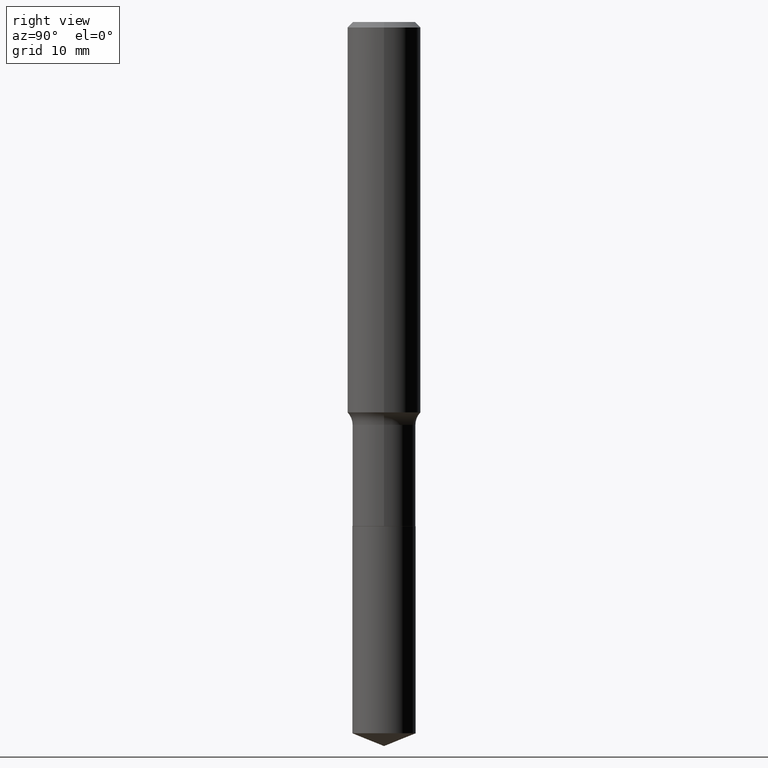
[diagram: clean part render]
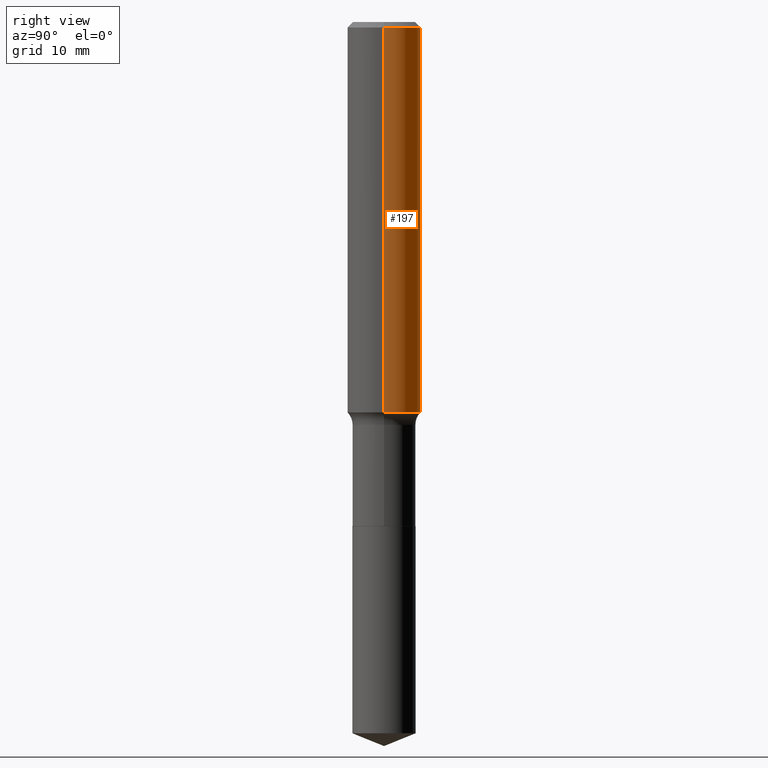
[diagram: same view with one face highlighted and labeled with its STEP entity id]
A machine part, right view. The second image highlights one B-rep face of the part: STEP entity #197.
In plain terms, the highlighted cylindrical surface (partial cylindrical patch) has radius 4.0005 mm, axis along (-0, 0, 1).
Its self-contained STEP definition (entity closure, byte-faithful):
#47 = CIRCLE ( 'NONE', #391, 0.1575000000000001954 ) ;
#55 = EDGE_CURVE ( 'NONE', #486, #356, #249, .T. ) ;
#62 = CARTESIAN_POINT ( 'NONE',  ( -0.1575000000000000844, 1.119104808822158392E-15, -7.747322767151481189E-30 ) ) ;
#95 = ORIENTED_EDGE ( 'NONE', *, *, #55, .T. ) ;
#103 = DIRECTION ( 'NONE',  ( -2.445468806185136597E-29, 3.491481338843145583E-15, 1.000000000000000000 ) ) ;
#104 = VECTOR ( 'NONE', #214, 39.37007874015748143 ) ;
#120 = EDGE_CURVE ( 'NONE', #472, #356, #451, .T. ) ;
#124 = AXIS2_PLACEMENT_3D ( 'NONE', #215, #103, #372 ) ;
#152 = CARTESIAN_POINT ( 'NONE',  ( 0.1575000000000000844, -1.099816621735587677E-15, 7.679978421878603638E-30 ) ) ;
#154 = CARTESIAN_POINT ( 'NONE',  ( 4.100728003481664027E-29, -5.854752783439843973E-15, -1.676867843543948355 ) ) ;
#158 = VECTOR ( 'NONE', #457, 39.37007874015748143 ) ;
#160 = CARTESIAN_POINT ( 'NONE',  ( 5.777420054612421980E-31, -8.248624663016985234E-17, -0.02362500000000015282 ) ) ;
#196 = DIRECTION ( 'NONE',  ( 1.000000000000000000, -6.982962677686265922E-15, 0.000000000000000000 ) ) ;
#197 = ADVANCED_FACE ( 'NONE', ( #218 ), #258, .T. ) ;
#206 = CARTESIAN_POINT ( 'NONE',  ( -0.1575000000000001676, -4.735647974617684792E-15, -1.676867843543948355 ) ) ;
#210 = DIRECTION ( 'NONE',  ( 1.000000000000000000, -6.982962677686265922E-15, 0.000000000000000000 ) ) ;
#214 = DIRECTION ( 'NONE',  ( -2.445468806185136877E-29, 3.491481338843145188E-15, 1.000000000000000000 ) ) ;
#215 = CARTESIAN_POINT ( 'NONE',  ( 0.000000000000000000, 0.000000000000000000, 0.000000000000000000 ) ) ;
#218 = FACE_OUTER_BOUND ( 'NONE', #402, .T. ) ;
#222 = VERTEX_POINT ( 'NONE', #326 ) ;
#242 = ORIENTED_EDGE ( 'NONE', *, *, #313, .F. ) ;
#243 = ORIENTED_EDGE ( 'NONE', *, *, #120, .F. ) ;
#249 = LINE ( 'NONE', #62, #104 ) ;
#258 = CYLINDRICAL_SURFACE ( 'NONE', #124, 0.1575000000000000844 ) ;
#289 = EDGE_CURVE ( 'NONE', #222, #486, #47, .T. ) ;
#313 = EDGE_CURVE ( 'NONE', #222, #472, #419, .T. ) ;
#316 = DIRECTION ( 'NONE',  ( -2.445468806185136597E-29, 3.491481338843145583E-15, 1.000000000000000000 ) ) ;
#326 = CARTESIAN_POINT ( 'NONE',  ( 0.1575000000000001676, -6.954569405175432242E-15, -1.676867843543948355 ) ) ;
#346 = DIRECTION ( 'NONE',  ( -2.445468806185136597E-29, 3.491481338843145583E-15, 1.000000000000000000 ) ) ;
#356 = VERTEX_POINT ( 'NONE', #454 ) ;
#370 = AXIS2_PLACEMENT_3D ( 'NONE', #160, #316, #210 ) ;
#372 = DIRECTION ( 'NONE',  ( 1.000000000000000000, -6.982962677686267499E-15, 4.876176775795936353E-29 ) ) ;
#388 = CARTESIAN_POINT ( 'NONE',  ( 0.1575000000000000011, -1.182302868365756679E-15, -0.02362500000000015282 ) ) ;
#391 = AXIS2_PLACEMENT_3D ( 'NONE', #154, #346, #196 ) ;
#402 = EDGE_LOOP ( 'NONE', ( #430, #95, #243, #242 ) ) ;
#419 = LINE ( 'NONE', #152, #158 ) ;
#430 = ORIENTED_EDGE ( 'NONE', *, *, #289, .T. ) ;
#451 = CIRCLE ( 'NONE', #370, 0.1575000000000000011 ) ;
#454 = CARTESIAN_POINT ( 'NONE',  ( -0.1575000000000000011, -1.849514706212847898E-15, -0.02362500000000015282 ) ) ;
#457 = DIRECTION ( 'NONE',  ( -2.445468806185136877E-29, 3.491481338843145188E-15, 1.000000000000000000 ) ) ;
#472 = VERTEX_POINT ( 'NONE', #388 ) ;
#486 = VERTEX_POINT ( 'NONE', #206 ) ;